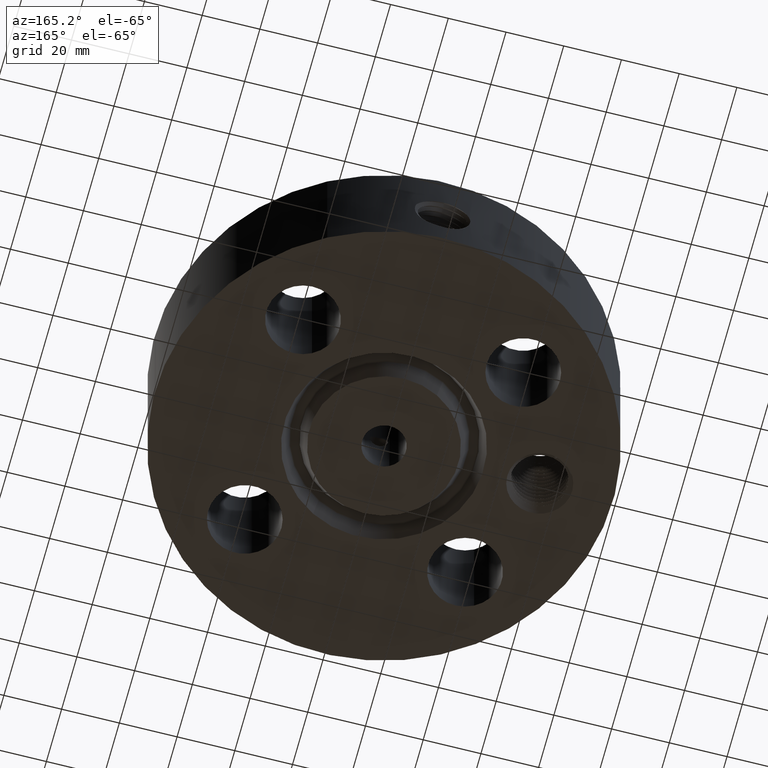
[diagram: clean part render]
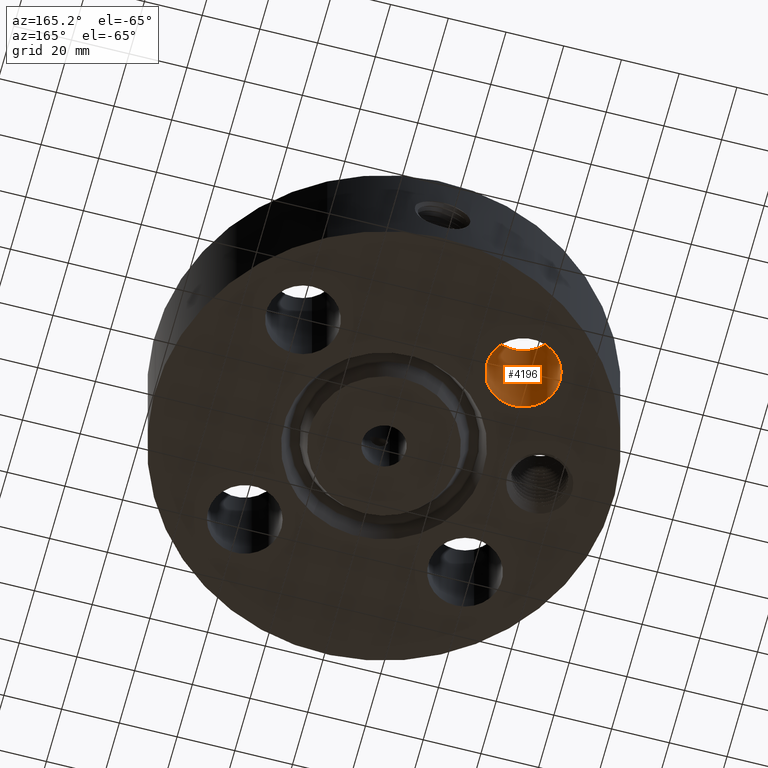
[diagram: same view with one face highlighted and labeled with its STEP entity id]
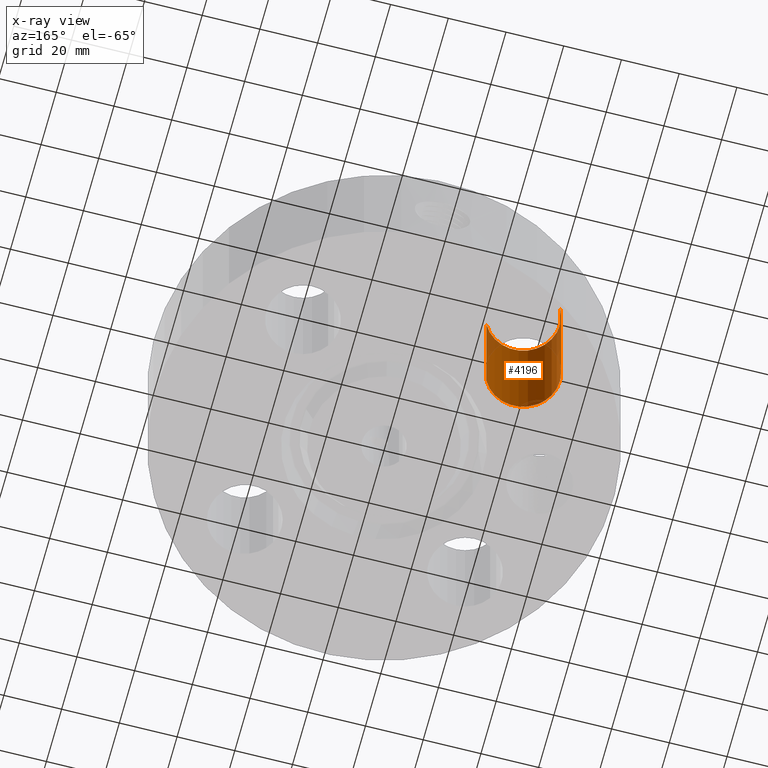
[diagram: x-ray of the same camera — body ghosted, the highlighted face saturated]
A machine part, auxiliary view. The second image highlights one B-rep face of the part: STEP entity #4196.
The next image is the same camera in x-ray: the body ghosted, the highlighted face saturated — about 10% of this face is hidden behind the body in this view.
In plain terms, the highlighted cylindrical surface (partial cylindrical patch) has radius 12.7 mm, axis along (-0, 0, -1).
Its self-contained STEP definition (entity closure, byte-faithful):
#3003=AXIS2_PLACEMENT_3D('Circle Axis2P3D',#3001,#3002,$) ;
#4169=AXIS2_PLACEMENT_3D('Cylinder Axis2P3D',#4166,#4167,#4168) ;
#4180=AXIS2_PLACEMENT_3D('Circle Axis2P3D',#4178,#4179,$) ;
#2996=CARTESIAN_POINT('Vertex',(-1.94139319097,1.74231467933,1.75000000001)) ;
#2998=CARTESIAN_POINT('Vertex',(-1.06381062908,1.26288914072,1.75000000001)) ;
#3001=CARTESIAN_POINT('Axis2P3D Location',(-1.50260191003,1.50260191003,1.75000000001)) ;
#4166=CARTESIAN_POINT('Axis2P3D Location',(-1.50260191003,1.50260191003,1.74606299213)) ;
#4171=CARTESIAN_POINT('Line Origine',(-1.06381062908,1.26288914072,0.875000000003)) ;
#4175=CARTESIAN_POINT('Vertex',(-1.06381062908,1.26288914072,0.)) ;
#4178=CARTESIAN_POINT('Axis2P3D Location',(-1.50260191003,1.50260191003,0.)) ;
#4182=CARTESIAN_POINT('Vertex',(-1.94139319097,1.74231467933,0.)) ;
#4185=CARTESIAN_POINT('Line Origine',(-1.94139319097,1.74231467933,0.875000000003)) ;
#3002=DIRECTION('Axis2P3D Direction',(0.,0.,-0.0393700787402)) ;
#4167=DIRECTION('Axis2P3D Direction',(-0.,0.,-0.0393700787402)) ;
#4168=DIRECTION('Axis2P3D XDirection',(-0.0345504945626,0.0188750212049,0.)) ;
#4172=DIRECTION('Vector Direction',(0.,0.,-0.0393700787402)) ;
#4179=DIRECTION('Axis2P3D Direction',(-0.,0.,-0.0393700787402)) ;
#4186=DIRECTION('Vector Direction',(0.,0.,-0.0393700787402)) ;
#4173=VECTOR('Line Direction',#4172,0.0393700787402) ;
#4187=VECTOR('Line Direction',#4186,0.0393700787402) ;
#4191=ORIENTED_EDGE('',*,*,#4177,.F.) ;
#4192=ORIENTED_EDGE('',*,*,#4184,.T.) ;
#4193=ORIENTED_EDGE('',*,*,#4189,.T.) ;
#4194=ORIENTED_EDGE('',*,*,#3005,.F.) ;
#4196=ADVANCED_FACE('PartBody',(#4195),#4170,.F.) ;
#3004=CIRCLE('generated circle',#3003,0.500000000002) ;
#4181=CIRCLE('generated circle',#4180,0.500000000002) ;
#4170=CYLINDRICAL_SURFACE('generated cylinder',#4169,0.500000000002) ;
#3005=EDGE_CURVE('',#2999,#2997,#3004,.T.) ;
#4177=EDGE_CURVE('',#4176,#2999,#4174,.F.) ;
#4184=EDGE_CURVE('',#4176,#4183,#4181,.T.) ;
#4189=EDGE_CURVE('',#4183,#2997,#4188,.F.) ;
#4190=EDGE_LOOP('',(#4191,#4192,#4193,#4194)) ;
#4195=FACE_OUTER_BOUND('',#4190,.T.) ;
#4174=LINE('Line',#4171,#4173) ;
#4188=LINE('Line',#4185,#4187) ;
#2997=VERTEX_POINT('',#2996) ;
#2999=VERTEX_POINT('',#2998) ;
#4176=VERTEX_POINT('',#4175) ;
#4183=VERTEX_POINT('',#4182) ;